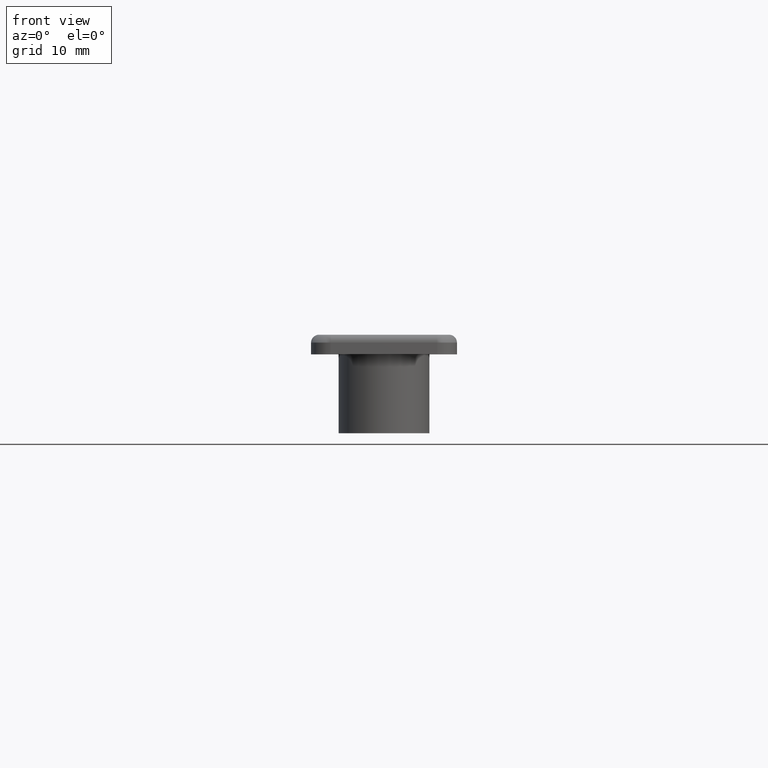
[diagram: clean part render]
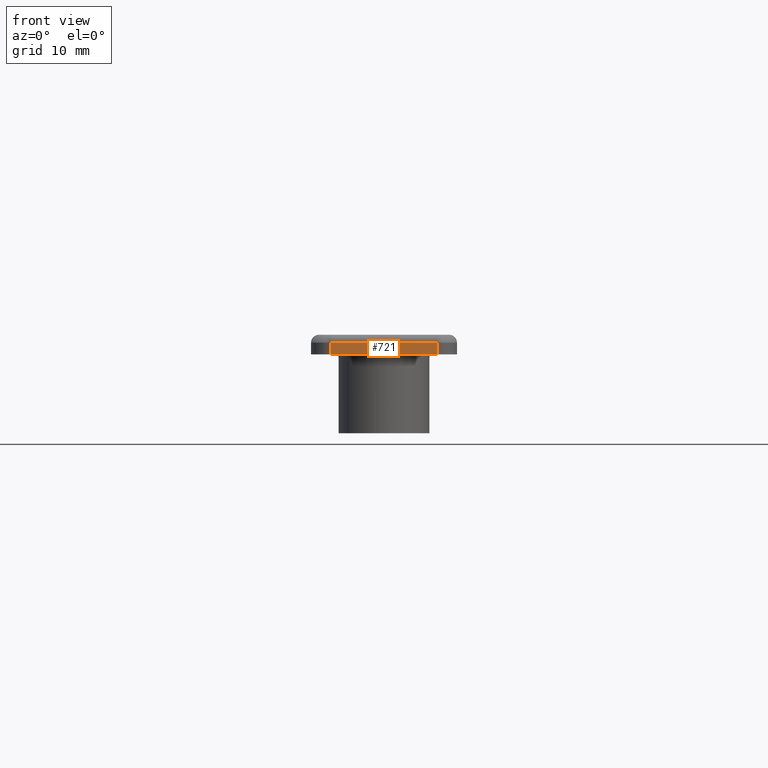
[diagram: same view with one face highlighted and labeled with its STEP entity id]
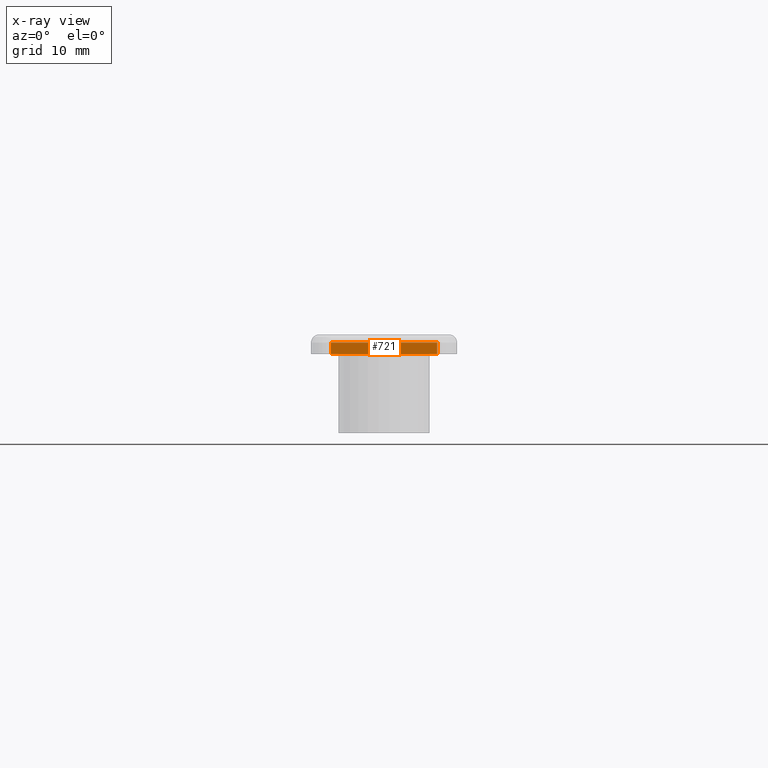
[diagram: x-ray of the same camera — body ghosted, the highlighted face saturated]
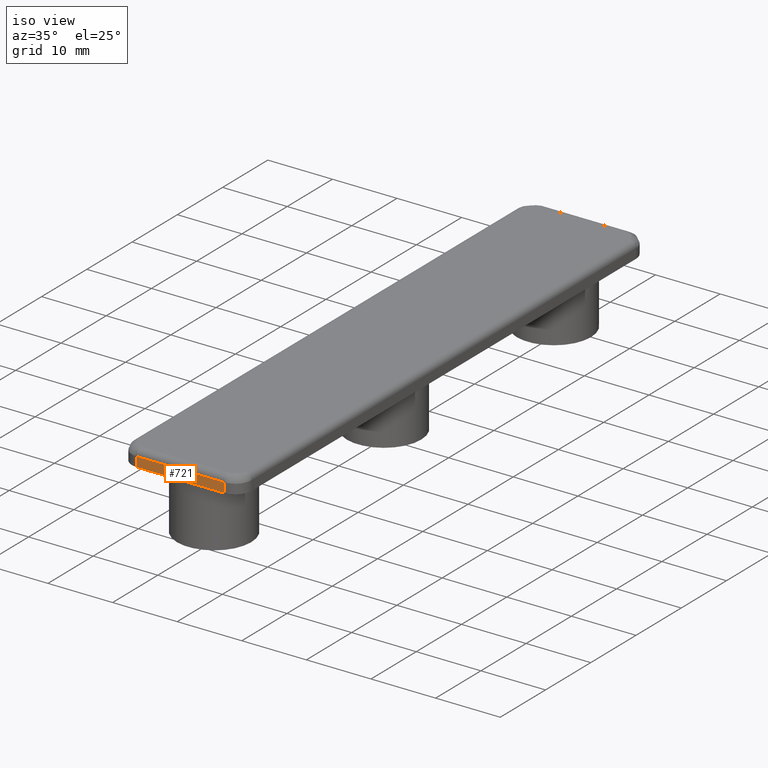
[diagram: same view with one face highlighted and labeled with its STEP entity id]
A machine part, front view. The second image highlights one B-rep face of the part: STEP entity #721.
The next image is the same camera in x-ray: the body ghosted, the highlighted face saturated — about 0% of this face is hidden behind the body in this view.
A second angle (iso view) of the same face is appended — the face is thin or edge-on in the first view.
In plain terms, the highlighted planar face has unit normal (0, 1, 0).
Its self-contained STEP definition (entity closure, byte-faithful):
#34=CARTESIAN_POINT('',(6.750044999972943,-44.999954999820147,8.266421E-016));
#35=VERTEX_POINT('',#34);
#43=CARTESIAN_POINT('',(-6.749954999972943,-44.999954999820147,-8.266311E-016));
#44=VERTEX_POINT('',#43);
#45=CARTESIAN_POINT('',(6.750044999972943,-44.999954999820147,8.266421E-016));
#46=DIRECTION('',(-1.0,0.0,0.0));
#47=VECTOR('',#46,13.499999999946006);
#48=LINE('',#45,#47);
#49=EDGE_CURVE('',#35,#44,#48,.T.);
#679=CARTESIAN_POINT('',(6.750044999972943,-44.999954999820147,1.500000000000001));
#680=VERTEX_POINT('',#679);
#688=CARTESIAN_POINT('',(6.750044999972943,-44.999954999820147,8.266421E-016));
#689=DIRECTION('',(0.0,0.0,1.0));
#690=VECTOR('',#689,1.500000000000000);
#691=LINE('',#688,#690);
#692=EDGE_CURVE('',#35,#680,#691,.T.);
#698=CARTESIAN_POINT('',(6.750044999972943,-44.999954999820147,8.266421E-016));
#699=DIRECTION('',(0.0,1.0,0.0));
#700=DIRECTION('',(-1.0,0.0,0.0));
#701=AXIS2_PLACEMENT_3D('',#698,#699,#700);
#702=PLANE('',#701);
#703=ORIENTED_EDGE('',*,*,#692,.T.);
#704=CARTESIAN_POINT('',(-6.749954999972943,-44.999954999820154,1.499999999999999));
#705=VERTEX_POINT('',#704);
#706=CARTESIAN_POINT('',(6.750044999972943,-44.999954999820147,1.500000000000001));
#707=DIRECTION('',(-1.0,0.0,0.0));
#708=VECTOR('',#707,13.499999999945885);
#709=LINE('',#706,#708);
#710=EDGE_CURVE('',#680,#705,#709,.T.);
#711=ORIENTED_EDGE('',*,*,#710,.T.);
#712=CARTESIAN_POINT('',(-6.749954999972943,-44.999954999820147,-8.266311E-016));
#713=DIRECTION('',(0.0,0.0,1.0));
#714=VECTOR('',#713,1.500000000000000);
#715=LINE('',#712,#714);
#716=EDGE_CURVE('',#44,#705,#715,.T.);
#717=ORIENTED_EDGE('',*,*,#716,.F.);
#718=ORIENTED_EDGE('',*,*,#49,.F.);
#719=EDGE_LOOP('',(#703,#711,#717,#718));
#720=FACE_OUTER_BOUND('',#719,.T.);
#721=ADVANCED_FACE('',(#720),#702,.F.);